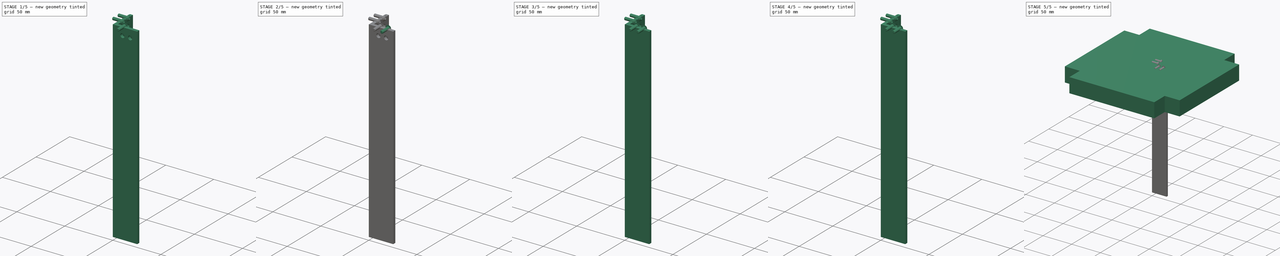
[diagram: build sequence overview — one tinted view per stage of 5, left to right]
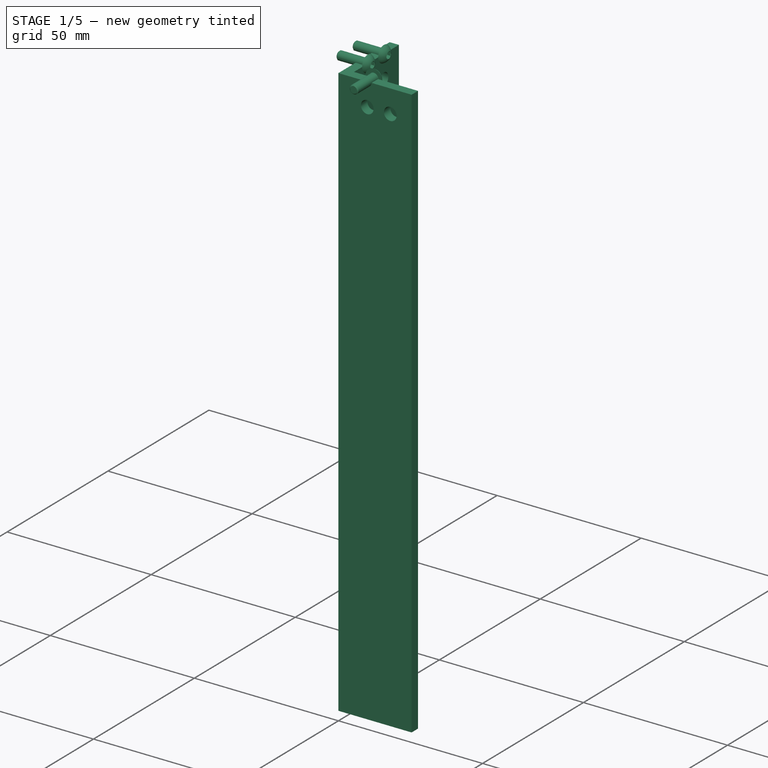
[diagram: stage 1 of 5 — iso view after this stage's code; geometry added in this stage tinted green]
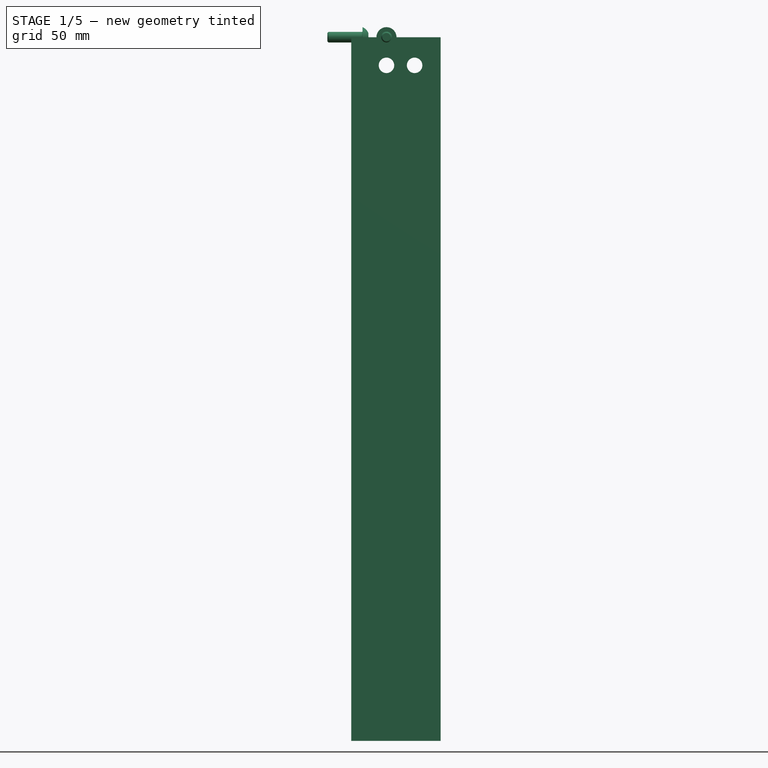
[diagram: stage 1 of 5 — front view after this stage's code; geometry added in this stage tinted green]
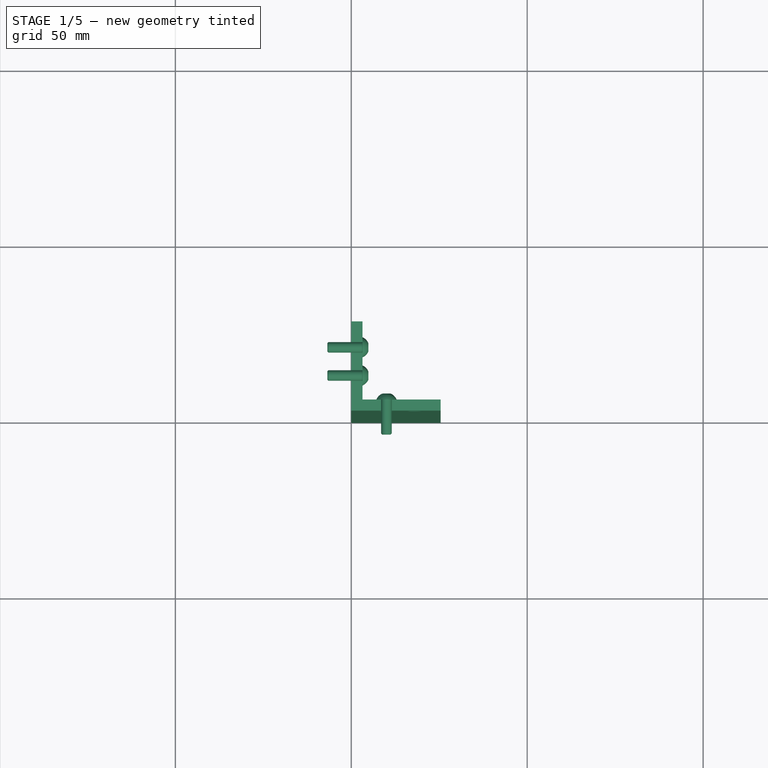
[diagram: stage 1 of 5 — top view after this stage's code; geometry added in this stage tinted green]
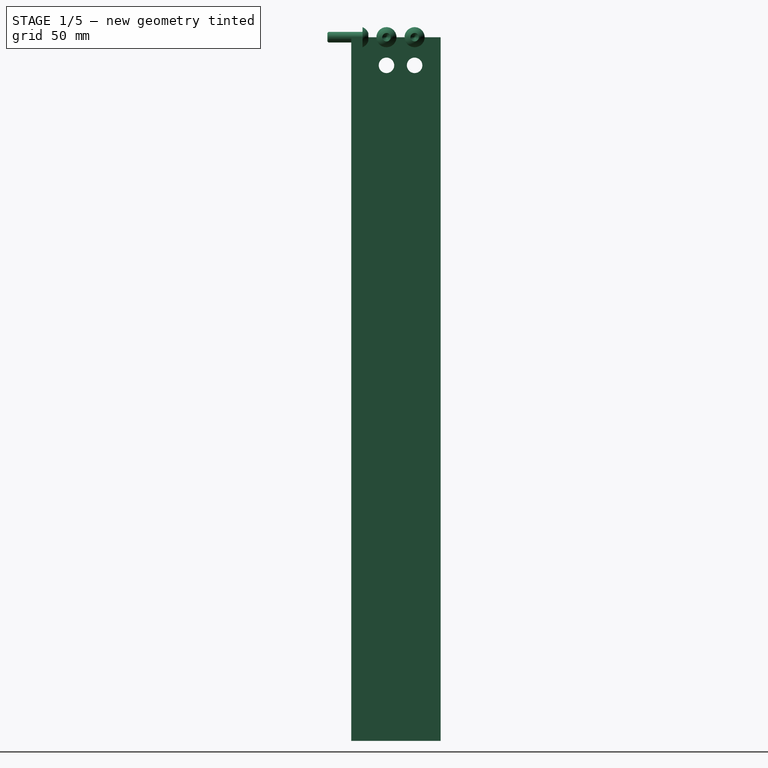
[diagram: stage 1 of 5 — right view after this stage's code; geometry added in this stage tinted green]
FCSTD DOCUMENT  (FreeCAD 0.18R4 (GitTag))
Label: WoodArt Ejercicio 002
Comment: https://designlibre.org/license-en/\nStarting from the topic that matters most in these times COVID-19 I have read a note from a protector for doctors called AerosolBox with a CC design for reproducti... (+266 chars)
License: All rights reserved
LicenseURL: https://designlibre.org/license-en/
objects: Part::FeaturePython×16, Sketcher::SketchObject×13, App::Part×9, PartDesign::Pocket×8, PartDesign::Pad×5, PartDesign::Body×5
note: 60 computed .brp shape members not serialized (recipe doc carries the construction recipe); baked Part::Feature solids carry a one-line shape summary decoded from their .brp

FEATURE [Part::FeaturePython] Screw013  label="M3x10-Screw013"  # Fasteners workbench fastener (typed FeaturePython)
  Placement = pos=(10,3.2,0) rot=(-1,0,0;1.5708rad)
  diameter = 1
  invert = false
  length = 2
  matchOuter = false
  offset = 0
  thread = false
  type = 20
FEATURE [Part::FeaturePython] Screw014  label="M3x10-Screw014"  # Fasteners workbench fastener (typed FeaturePython)
  Placement = pos=(3.2,18,0) rot=(0,1,0;1.5708rad)
  diameter = 1
  invert = false
  length = 2
  matchOuter = false
  offset = 0
  thread = false
  type = 20
FEATURE [Part::FeaturePython] Screw015  label="M3x10-Screw015"  # Fasteners workbench fastener (typed FeaturePython)
  Placement = pos=(3.2,10,0) rot=(0,1,0;1.5708rad)
  diameter = 1
  invert = false
  length = 2
  matchOuter = false
  offset = 0
  thread = false
  type = 20
FEATURE [App::Part] Part007
  Group = -> [Screw015,Screw014,Screw013,Screw012]
  Origin = -> Origin012
  Placement = pos=(0,0,-8) rot=(0,0,1;0rad)
FEATURE [PartDesign::Pad] Pad004
  Length = 200
  Length2 = 100
  Profile = -> Sketch011
  Refine = true
  Reversed = true
  Type = 0
FEATURE [Sketcher::SketchObject] Sketch010
  MapMode = 5
  Placement = pos=(3.175,0,0) rot=(0.57735,0.57735,0.57735;2.0944rad)
  Support = -> [Pad004]
  sketch-geometry (2):
    g0: Circle CenterX=10 CenterY=-8 CenterZ=0 NormalX=0 NormalY=0 NormalZ=1 AngleXU=0 Radius=2.2
    g1: Circle CenterX=18 CenterY=-8 CenterZ=0 NormalX=0 NormalY=0 NormalZ=1 AngleXU=0 Radius=2.2
  constraints (6):
    c: Equal(g1,g0)
    c: Radius(g1) = 2.2
    c: DistanceX(g0,g1) = 8
    c: DistanceX(g-1,g0) = 10
    c: DistanceY(g1,g-1) = 8
    c: Horizontal(g1,g0)
FEATURE [PartDesign::Pocket] Pocket007
  BaseFeature = -> Pad004
  Length = 5
  Length2 = 100
  Profile = -> Sketch010
  Refine = true
  Type = 1
FEATURE [Sketcher::SketchObject] Sketch012
  MapMode = 5
  Placement = pos=(0,3.175,0) rot=(0,0.707107,0.707107;3.14159rad)
  Support = -> [Pocket007]
  sketch-geometry (2):
    g0: Circle CenterX=-18 CenterY=-8 CenterZ=0 NormalX=0 NormalY=0 NormalZ=1 AngleXU=0 Radius=2.2
    g1: Circle CenterX=-10 CenterY=-8 CenterZ=0 NormalX=0 NormalY=0 NormalZ=1 AngleXU=0 Radius=2.2
  constraints (6):
    c: Equal(g0,g1)
    c: Horizontal(g1,g0)
    c: DistanceX(g0,g1) = 8
    c: DistanceX(g1,g-1) = 10
    c: DistanceY(g1,g-1) = 8
    c: Radius(g0) = 2.2
FEATURE [PartDesign::Pocket] Pocket006
  BaseFeature = -> Pocket007
  Length = 5
  Length2 = 100
  Profile = -> Sketch012
  Refine = true
  Type = 1
FEATURE [PartDesign::Body] Body004
  Group = -> [Sketch011,Pad004,Sketch010,Pocket007,Sketch012,Pocket006]
  Origin = -> Origin013
  Tip = -> Pocket006
FEATURE [App::Part] Part008
  Group = -> [Body004,Part007]
  Origin = -> Origin011
  Placement = pos=(-74,-74,0) rot=(0,0,1;3.14159rad)
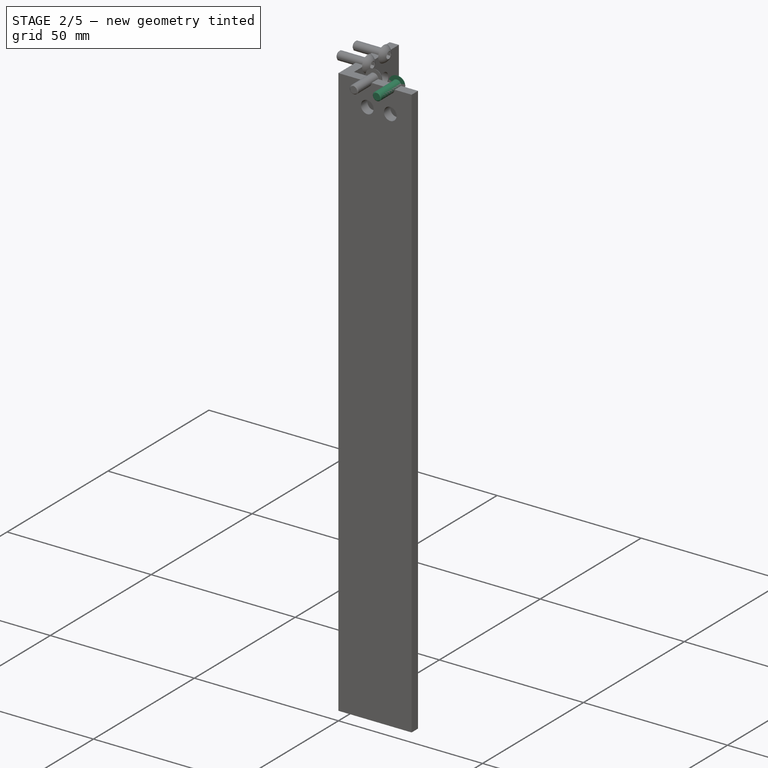
[diagram: stage 2 of 5 — iso view after this stage's code; geometry added in this stage tinted green]
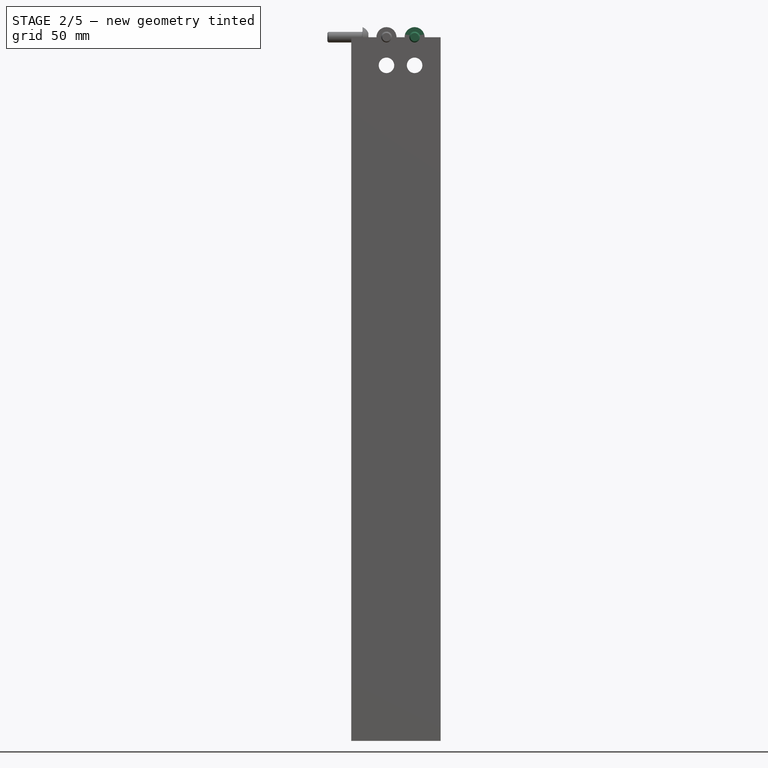
[diagram: stage 2 of 5 — front view after this stage's code; geometry added in this stage tinted green]
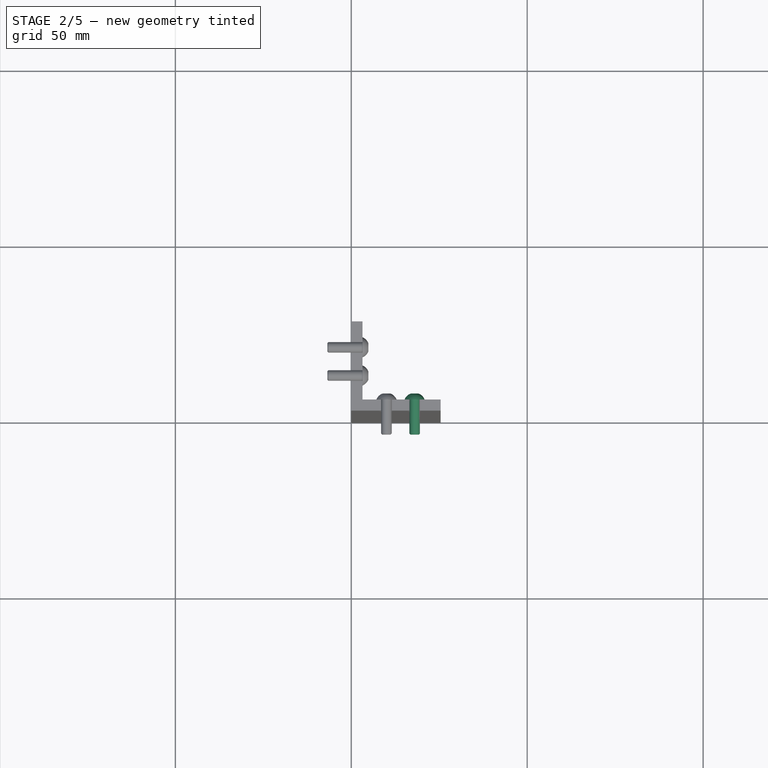
[diagram: stage 2 of 5 — top view after this stage's code; geometry added in this stage tinted green]
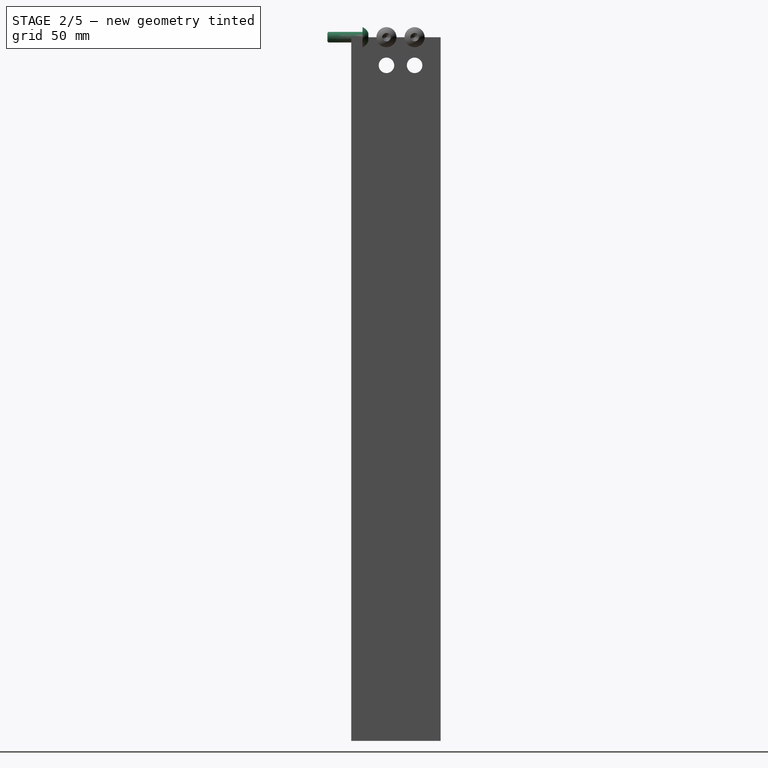
[diagram: stage 2 of 5 — right view after this stage's code; geometry added in this stage tinted green]
FEATURE [Part::FeaturePython] Screw010  label="M3x10-Screw010"  # Fasteners workbench fastener (typed FeaturePython)
  Placement = pos=(3.2,18,0) rot=(0,1,0;1.5708rad)
  diameter = 1
  invert = false
  length = 2
  matchOuter = false
  offset = 0
  thread = false
  type = 20
FEATURE [Part::FeaturePython] Screw011  label="M3x10-Screw011"  # Fasteners workbench fastener (typed FeaturePython)
  Placement = pos=(3.2,10,0) rot=(0,1,0;1.5708rad)
  diameter = 1
  invert = false
  length = 2
  matchOuter = false
  offset = 0
  thread = false
  type = 20
FEATURE [App::Part] Part005
  Group = -> [Screw011,Screw010,Screw009,Screw008]
  Origin = -> Origin009
  Placement = pos=(0,0,-8) rot=(0,0,1;0rad)
FEATURE [PartDesign::Pad] Pad003
  Length = 200
  Length2 = 100
  Profile = -> Sketch008
  Refine = true
  Reversed = true
  Type = 0
FEATURE [Sketcher::SketchObject] Sketch007
  MapMode = 5
  Placement = pos=(3.175,0,0) rot=(0.57735,0.57735,0.57735;2.0944rad)
  Support = -> [Pad003]
  sketch-geometry (2):
    g0: Circle CenterX=10 CenterY=-8 CenterZ=0 NormalX=0 NormalY=0 NormalZ=1 AngleXU=0 Radius=2.2
    g1: Circle CenterX=18 CenterY=-8 CenterZ=0 NormalX=0 NormalY=0 NormalZ=1 AngleXU=0 Radius=2.2
  constraints (6):
    c: Equal(g1,g0)
    c: Radius(g1) = 2.2
    c: DistanceX(g0,g1) = 8
    c: DistanceX(g-1,g0) = 10
    c: DistanceY(g1,g-1) = 8
    c: Horizontal(g1,g0)
FEATURE [PartDesign::Pocket] Pocket005
  BaseFeature = -> Pad003
  Length = 5
  Length2 = 100
  Profile = -> Sketch007
  Refine = true
  Type = 1
FEATURE [Sketcher::SketchObject] Sketch009
  MapMode = 5
  Placement = pos=(0,3.175,0) rot=(0,0.707107,0.707107;3.14159rad)
  Support = -> [Pocket005]
  sketch-geometry (2):
    g0: Circle CenterX=-18 CenterY=-8 CenterZ=0 NormalX=0 NormalY=0 NormalZ=1 AngleXU=0 Radius=2.2
    g1: Circle CenterX=-10 CenterY=-8 CenterZ=0 NormalX=0 NormalY=0 NormalZ=1 AngleXU=0 Radius=2.2
  constraints (6):
    c: Equal(g0,g1)
    c: Horizontal(g1,g0)
    c: DistanceX(g0,g1) = 8
    c: DistanceX(g1,g-1) = 10
    c: DistanceY(g1,g-1) = 8
    c: Radius(g0) = 2.2
FEATURE [PartDesign::Pocket] Pocket004
  BaseFeature = -> Pocket005
  Length = 5
  Length2 = 100
  Profile = -> Sketch009
  Refine = true
  Type = 1
FEATURE [PartDesign::Body] Body003
  Group = -> [Sketch008,Pad003,Sketch007,Pocket005,Sketch009,Pocket004]
  Origin = -> Origin010
  Tip = -> Pocket004
FEATURE [App::Part] Part006
  Group = -> [Body003,Part005]
  Origin = -> Origin008
  Placement = pos=(74,-74,0) rot=(0,0,1;4.71239rad)
FEATURE [Sketcher::SketchObject] Sketch011
  MapMode = 5
  Support = -> [XY_Plane011]
  sketch-geometry (6):
    g0: LineSegment StartX=3.175 StartY=3.175 StartZ=0 EndX=3.175 EndY=25.4 EndZ=0
    g1: LineSegment StartX=3.175 StartY=25.4 StartZ=0 EndX=0 EndY=25.4 EndZ=0
    g2: LineSegment StartX=0 StartY=0 StartZ=0 EndX=25.4 EndY=0 EndZ=0
    g3: LineSegment StartX=25.4 StartY=0 StartZ=0 EndX=25.4 EndY=3.175 EndZ=0
    g4: LineSegment StartX=25.4 StartY=3.175 StartZ=0 EndX=3.175 EndY=3.175 EndZ=0
    g5: LineSegment StartX=0 StartY=25.4 StartZ=0 EndX=0 EndY=0 EndZ=0
  constraints (17):
    c: Coincident(g0,g1)
    c: Horizontal(g1)
    c: Vertical(g0)
    c: Coincident(g2,g3)
    c: Coincident(g3,g4)
    c: Coincident(g5,g2)
    c: Horizontal(g2)
    c: Horizontal(g4)
    c: Vertical(g3)
    c: Vertical(g5)
    c: Equal(g3,g1)
    c: Coincident(g4,g0)
    c: Coincident(g5,g1)
    c: Coincident(g2,g-1)
    c: Equal(g2,g5)
    c: DistanceX(g2,g2) = 25.4
    c: DistanceY(g3,g3) = 3.175
FEATURE [Part::FeaturePython] Screw012  label="M3x10-Screw012"  # Fasteners workbench fastener (typed FeaturePython)
  Placement = pos=(18,3.2,0) rot=(-1,0,0;1.5708rad)
  diameter = 1
  invert = false
  length = 2
  matchOuter = false
  offset = 0
  thread = false
  type = 20
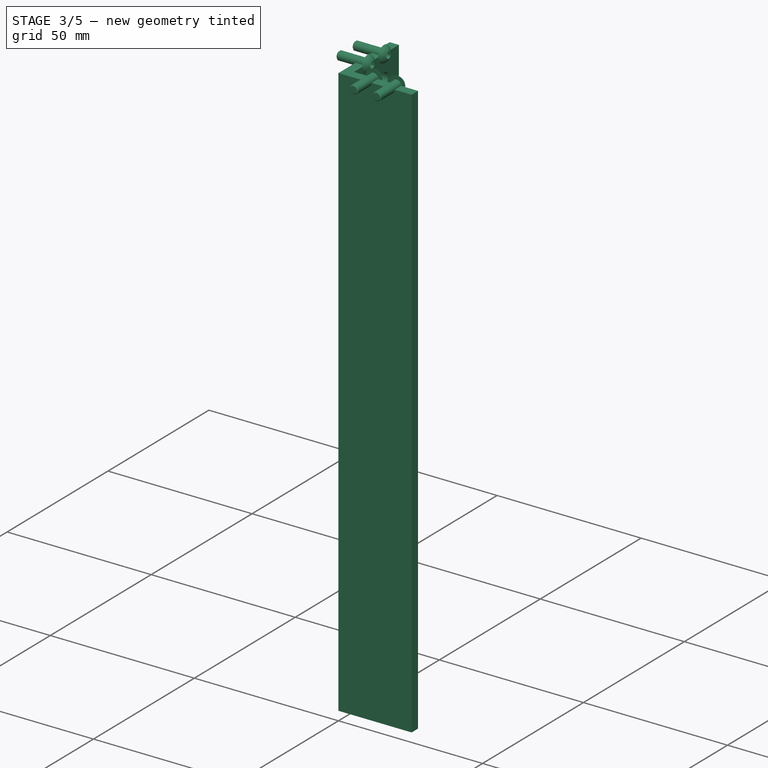
[diagram: stage 3 of 5 — iso view after this stage's code; geometry added in this stage tinted green]
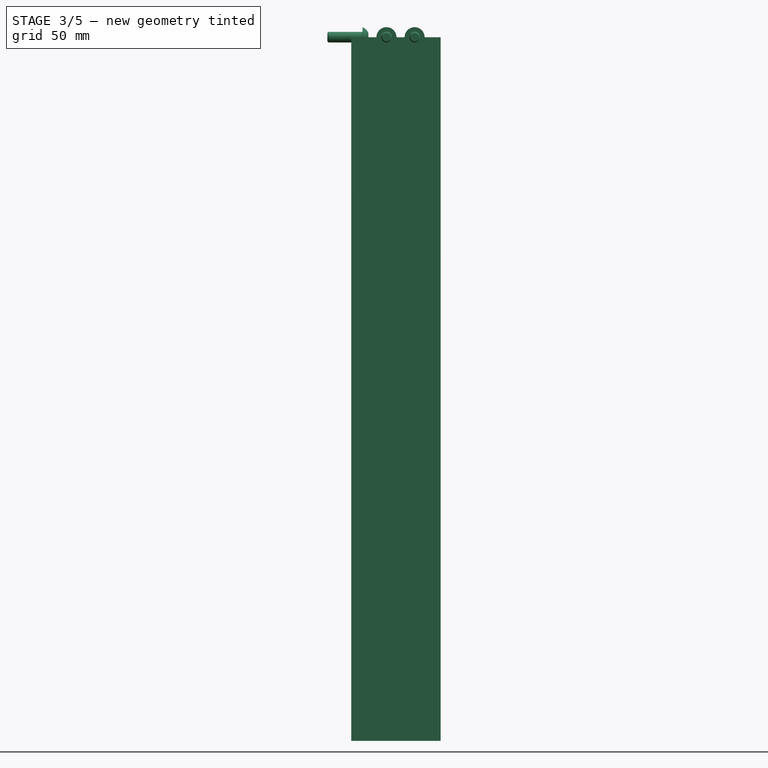
[diagram: stage 3 of 5 — front view after this stage's code; geometry added in this stage tinted green]
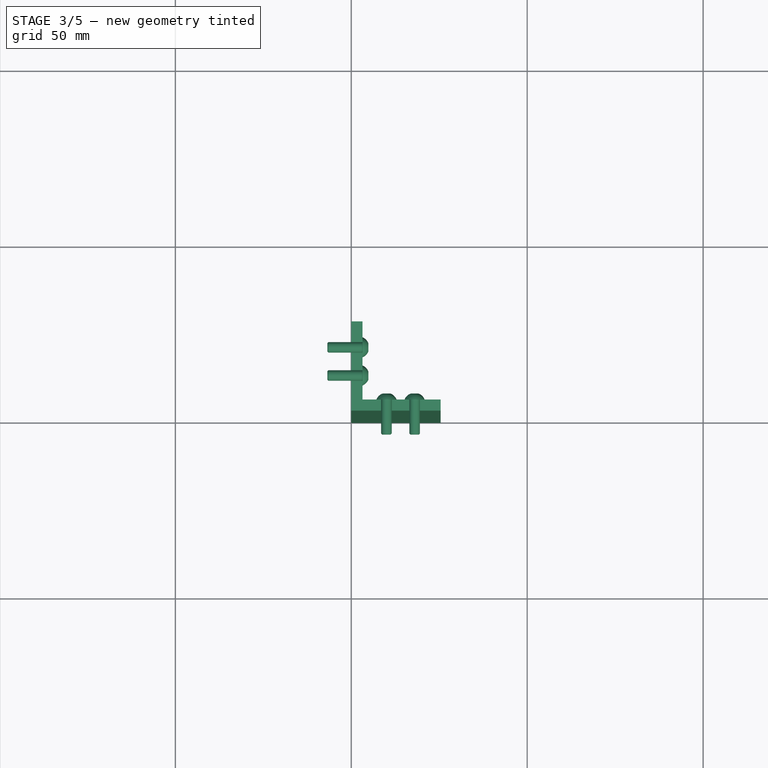
[diagram: stage 3 of 5 — top view after this stage's code; geometry added in this stage tinted green]
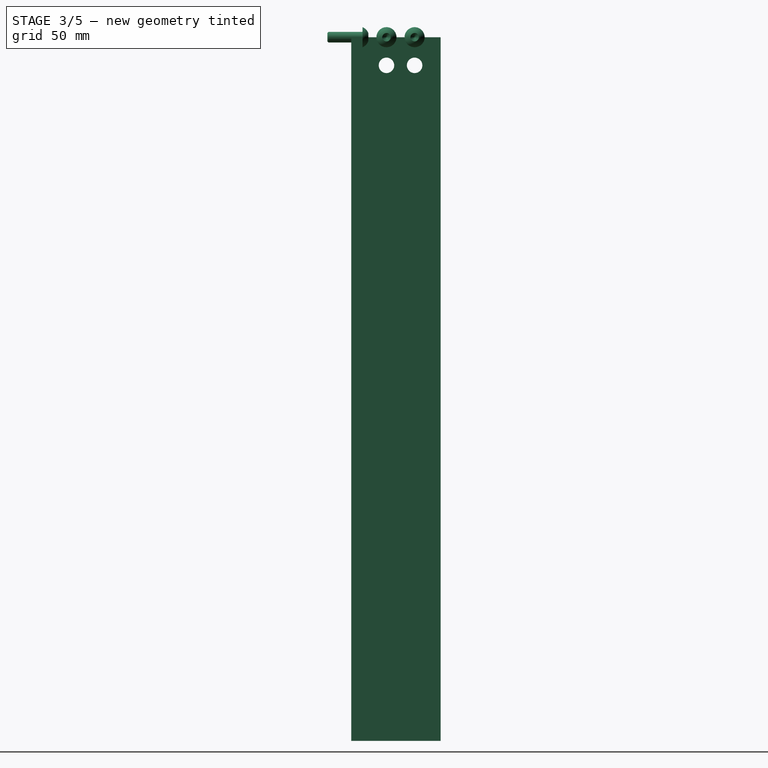
[diagram: stage 3 of 5 — right view after this stage's code; geometry added in this stage tinted green]
FEATURE [Part::FeaturePython] Screw007  label="M3x10-Screw007"  # Fasteners workbench fastener (typed FeaturePython)
  Placement = pos=(3.2,10,0) rot=(0,1,0;1.5708rad)
  diameter = 1
  invert = false
  length = 2
  matchOuter = false
  offset = 0
  thread = false
  type = 20
FEATURE [App::Part] Part003
  Group = -> [Screw007,Screw006,Screw005,Screw004]
  Origin = -> Origin006
  Placement = pos=(0,0,-8) rot=(0,0,1;0rad)
FEATURE [PartDesign::Pad] Pad002
  Length = 200
  Length2 = 100
  Profile = -> Sketch005
  Refine = true
  Reversed = true
  Type = 0
FEATURE [Sketcher::SketchObject] Sketch004
  MapMode = 5
  Placement = pos=(3.175,0,0) rot=(0.57735,0.57735,0.57735;2.0944rad)
  Support = -> [Pad002]
  sketch-geometry (2):
    g0: Circle CenterX=10 CenterY=-8 CenterZ=0 NormalX=0 NormalY=0 NormalZ=1 AngleXU=0 Radius=2.2
    g1: Circle CenterX=18 CenterY=-8 CenterZ=0 NormalX=0 NormalY=0 NormalZ=1 AngleXU=0 Radius=2.2
  constraints (6):
    c: Equal(g1,g0)
    c: Radius(g1) = 2.2
    c: DistanceX(g0,g1) = 8
    c: DistanceX(g-1,g0) = 10
    c: DistanceY(g1,g-1) = 8
    c: Horizontal(g1,g0)
FEATURE [PartDesign::Pocket] Pocket003
  BaseFeature = -> Pad002
  Length = 5
  Length2 = 100
  Profile = -> Sketch004
  Refine = true
  Type = 1
FEATURE [PartDesign::Body] Body002
  Group = -> [Sketch005,Pad002,Sketch004,Pocket003,Sketch006,Pocket002]
  Origin = -> Origin007
  Tip = -> Pocket002
FEATURE [App::Part] Part004
  Group = -> [Body002,Part003]
  Origin = -> Origin005
  Placement = pos=(-74,74,0) rot=(0,0,1;1.5708rad)
FEATURE [Sketcher::SketchObject] Sketch008
  MapMode = 5
  Support = -> [XY_Plane008]
  sketch-geometry (6):
    g0: LineSegment StartX=3.175 StartY=3.175 StartZ=0 EndX=3.175 EndY=25.4 EndZ=0
    g1: LineSegment StartX=3.175 StartY=25.4 StartZ=0 EndX=0 EndY=25.4 EndZ=0
    g2: LineSegment StartX=0 StartY=0 StartZ=0 EndX=25.4 EndY=0 EndZ=0
    g3: LineSegment StartX=25.4 StartY=0 StartZ=0 EndX=25.4 EndY=3.175 EndZ=0
    g4: LineSegment StartX=25.4 StartY=3.175 StartZ=0 EndX=3.175 EndY=3.175 EndZ=0
    g5: LineSegment StartX=0 StartY=25.4 StartZ=0 EndX=0 EndY=0 EndZ=0
  constraints (17):
    c: Coincident(g0,g1)
    c: Horizontal(g1)
    c: Vertical(g0)
    c: Coincident(g2,g3)
    c: Coincident(g3,g4)
    c: Coincident(g5,g2)
    c: Horizontal(g2)
    c: Horizontal(g4)
    c: Vertical(g3)
    c: Vertical(g5)
    c: Equal(g3,g1)
    c: Coincident(g4,g0)
    c: Coincident(g5,g1)
    c: Coincident(g2,g-1)
    c: Equal(g2,g5)
    c: DistanceX(g2,g2) = 25.4
    c: DistanceY(g3,g3) = 3.175
FEATURE [Part::FeaturePython] Screw008  label="M3x10-Screw008"  # Fasteners workbench fastener (typed FeaturePython)
  Placement = pos=(18,3.2,0) rot=(-1,0,0;1.5708rad)
  diameter = 1
  invert = false
  length = 2
  matchOuter = false
  offset = 0
  thread = false
  type = 20
FEATURE [Part::FeaturePython] Screw009  label="M3x10-Screw009"  # Fasteners workbench fastener (typed FeaturePython)
  Placement = pos=(10,3.2,0) rot=(-1,0,0;1.5708rad)
  diameter = 1
  invert = false
  length = 2
  matchOuter = false
  offset = 0
  thread = false
  type = 20
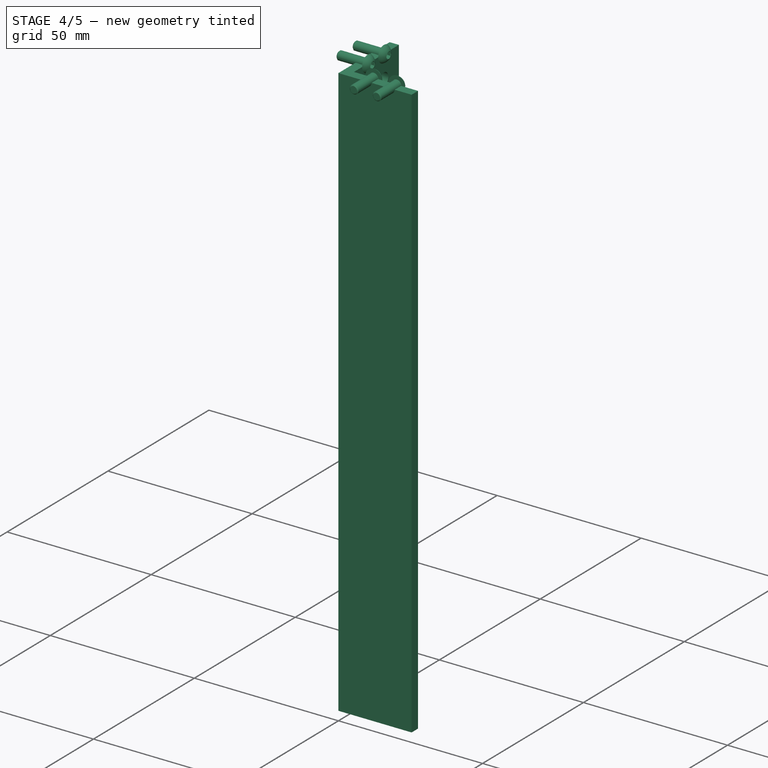
[diagram: stage 4 of 5 — iso view after this stage's code; geometry added in this stage tinted green]
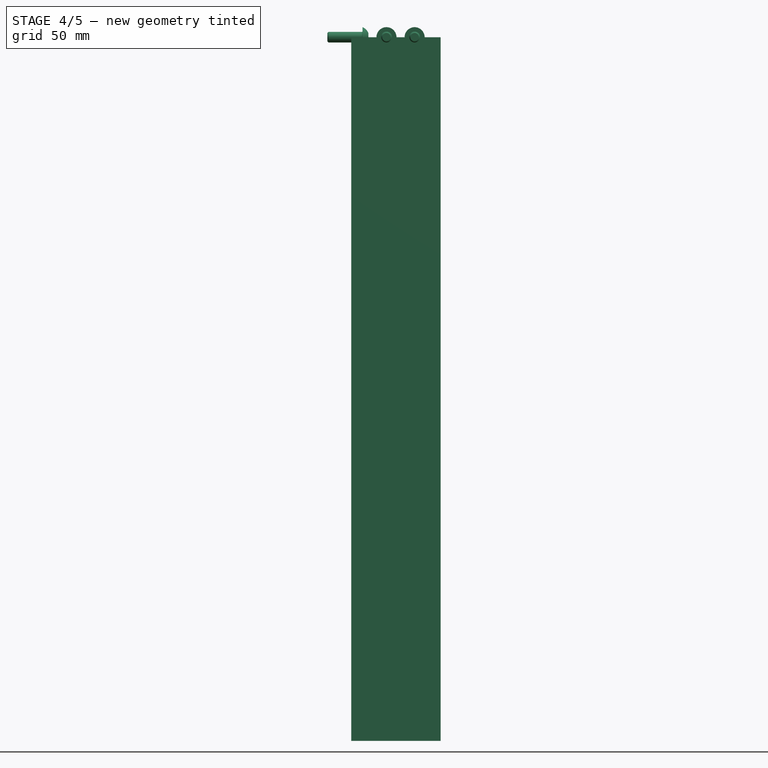
[diagram: stage 4 of 5 — front view after this stage's code; geometry added in this stage tinted green]
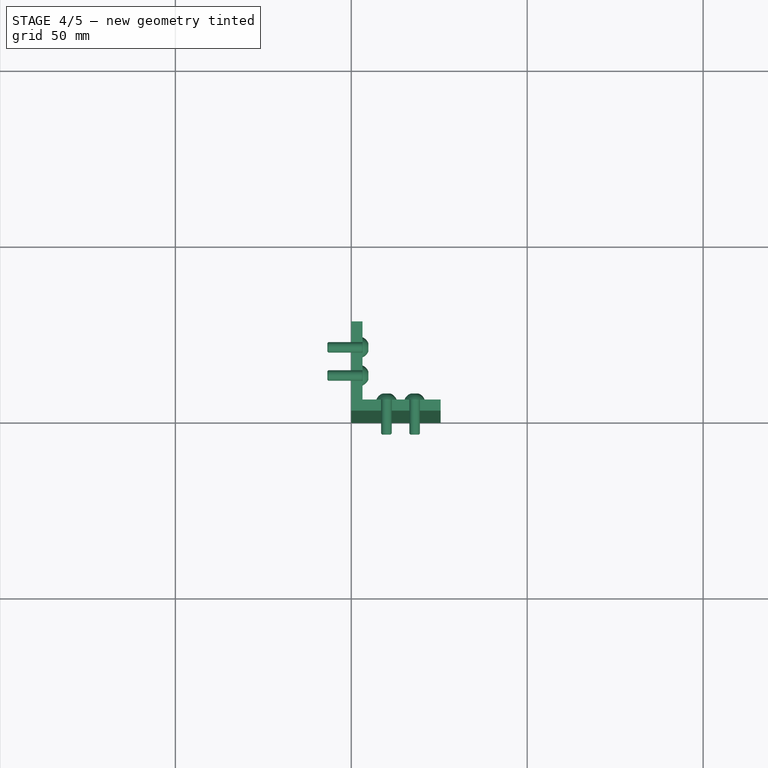
[diagram: stage 4 of 5 — top view after this stage's code; geometry added in this stage tinted green]
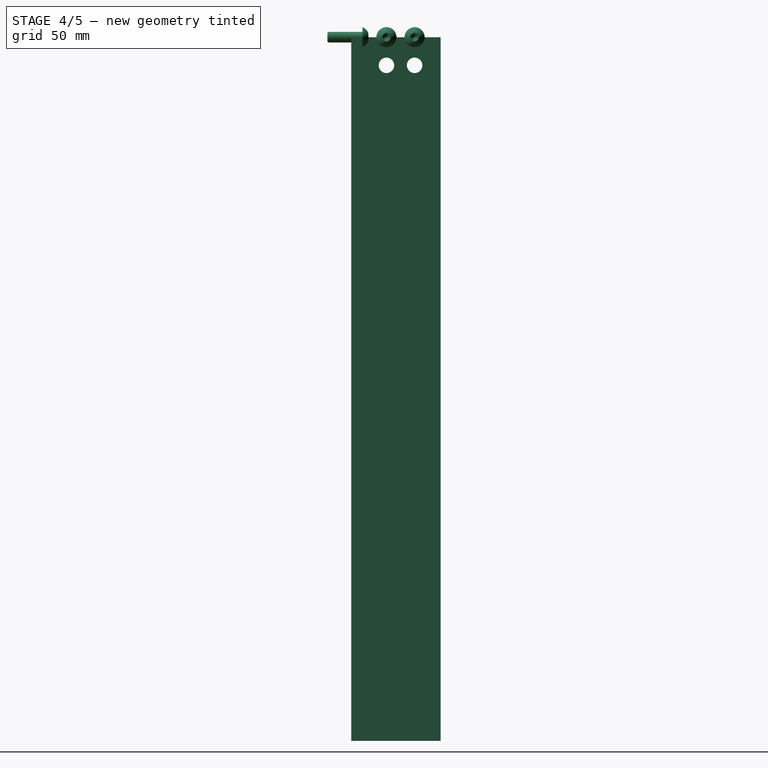
[diagram: stage 4 of 5 — right view after this stage's code; geometry added in this stage tinted green]
FEATURE [PartDesign::Body] Body
  Group = -> [Sketch,Pad]
  Origin = -> Origin002
  Tip = -> Pad
FEATURE [App::Part] Part
  Group = -> [Body]
  Origin = -> Origin
FEATURE [Sketcher::SketchObject] Sketch001
  MapMode = 5
  Support = -> [XY_Plane003]
  sketch-geometry (6):
    g0: LineSegment StartX=3.175 StartY=3.175 StartZ=0 EndX=3.175 EndY=25.4 EndZ=0
    g1: LineSegment StartX=3.175 StartY=25.4 StartZ=0 EndX=0 EndY=25.4 EndZ=0
    g2: LineSegment StartX=0 StartY=0 StartZ=0 EndX=25.4 EndY=0 EndZ=0
    g3: LineSegment StartX=25.4 StartY=0 StartZ=0 EndX=25.4 EndY=3.175 EndZ=0
    g4: LineSegment StartX=25.4 StartY=3.175 StartZ=0 EndX=3.175 EndY=3.175 EndZ=0
    g5: LineSegment StartX=0 StartY=25.4 StartZ=0 EndX=0 EndY=0 EndZ=0
  constraints (17):
    c: Coincident(g0,g1)
    c: Horizontal(g1)
    c: Vertical(g0)
    c: Coincident(g2,g3)
    c: Coincident(g3,g4)
    c: Coincident(g5,g2)
    c: Horizontal(g2)
    c: Horizontal(g4)
    c: Vertical(g3)
    c: Vertical(g5)
    c: Equal(g3,g1)
    c: Coincident(g4,g0)
    c: Coincident(g5,g1)
    c: Coincident(g2,g-1)
    c: Equal(g2,g5)
    c: DistanceX(g2,g2) = 25.4
    c: DistanceY(g3,g3) = 3.175
FEATURE [PartDesign::Pad] Pad001
  Length = 200
  Length2 = 100
  Profile = -> Sketch001
  Refine = true
  Reversed = true
  Type = 0
FEATURE [App::Part] Part002
  Group = -> [Screw,Screw001,Screw002,Screw003]
  Origin = -> Origin004
  Placement = pos=(0,0,-8) rot=(0,0,1;0rad)
FEATURE [Sketcher::SketchObject] Sketch002
  MapMode = 5
  Placement = pos=(3.175,0,0) rot=(0.57735,0.57735,0.57735;2.0944rad)
  Support = -> [Pad001]
  sketch-geometry (2):
    g0: Circle CenterX=10 CenterY=-8 CenterZ=0 NormalX=0 NormalY=0 NormalZ=1 AngleXU=0 Radius=2.2
    g1: Circle CenterX=18 CenterY=-8 CenterZ=0 NormalX=0 NormalY=0 NormalZ=1 AngleXU=0 Radius=2.2
  constraints (6):
    c: Equal(g1,g0)
    c: Radius(g1) = 2.2
    c: DistanceX(g0,g1) = 8
    c: DistanceX(g-1,g0) = 10
    c: DistanceY(g1,g-1) = 8
    c: Horizontal(g1,g0)
FEATURE [PartDesign::Pocket] Pocket
  BaseFeature = -> Pad001
  Length = 5
  Length2 = 100
  Profile = -> Sketch002
  Refine = true
  Type = 1
FEATURE [PartDesign::Body] Body001
  Group = -> [Sketch001,Pad001,Sketch002,Pocket,Sketch003,Pocket001]
  Origin = -> Origin003
  Tip = -> Pocket001
FEATURE [App::Part] Part001
  Group = -> [Body001,Part002]
  Origin = -> Origin001
  Placement = pos=(74,74,0) rot=(0,0,1;0rad)
FEATURE [Sketcher::SketchObject] Sketch005
  MapMode = 5
  Support = -> [XY_Plane005]
  sketch-geometry (6):
    g0: LineSegment StartX=3.175 StartY=3.175 StartZ=0 EndX=3.175 EndY=25.4 EndZ=0
    g1: LineSegment StartX=3.175 StartY=25.4 StartZ=0 EndX=0 EndY=25.4 EndZ=0
    g2: LineSegment StartX=0 StartY=0 StartZ=0 EndX=25.4 EndY=0 EndZ=0
    g3: LineSegment StartX=25.4 StartY=0 StartZ=0 EndX=25.4 EndY=3.175 EndZ=0
    g4: LineSegment StartX=25.4 StartY=3.175 StartZ=0 EndX=3.175 EndY=3.175 EndZ=0
    g5: LineSegment StartX=0 StartY=25.4 StartZ=0 EndX=0 EndY=0 EndZ=0
  constraints (17):
    c: Coincident(g0,g1)
    c: Horizontal(g1)
    c: Vertical(g0)
    c: Coincident(g2,g3)
    c: Coincident(g3,g4)
    c: Coincident(g5,g2)
    c: Horizontal(g2)
    c: Horizontal(g4)
    c: Vertical(g3)
    c: Vertical(g5)
    c: Equal(g3,g1)
    c: Coincident(g4,g0)
    c: Coincident(g5,g1)
    c: Coincident(g2,g-1)
    c: Equal(g2,g5)
    c: DistanceX(g2,g2) = 25.4
    c: DistanceY(g3,g3) = 3.175
FEATURE [Part::FeaturePython] Screw004  label="M3x10-Screw004"  # Fasteners workbench fastener (typed FeaturePython)
  Placement = pos=(18,3.2,0) rot=(-1,0,0;1.5708rad)
  diameter = 1
  invert = false
  length = 2
  matchOuter = false
  offset = 0
  thread = false
  type = 20
FEATURE [Part::FeaturePython] Screw005  label="M3x10-Screw005"  # Fasteners workbench fastener (typed FeaturePython)
  Placement = pos=(10,3.2,0) rot=(-1,0,0;1.5708rad)
  diameter = 1
  invert = false
  length = 2
  matchOuter = false
  offset = 0
  thread = false
  type = 20
FEATURE [Part::FeaturePython] Screw006  label="M3x10-Screw006"  # Fasteners workbench fastener (typed FeaturePython)
  Placement = pos=(3.2,18,0) rot=(0,1,0;1.5708rad)
  diameter = 1
  invert = false
  length = 2
  matchOuter = false
  offset = 0
  thread = false
  type = 20
FEATURE [Sketcher::SketchObject] Sketch006
  MapMode = 5
  Placement = pos=(0,3.175,0) rot=(0,0.707107,0.707107;3.14159rad)
  Support = -> [Pocket003]
  sketch-geometry (2):
    g0: Circle CenterX=-18 CenterY=-8 CenterZ=0 NormalX=0 NormalY=0 NormalZ=1 AngleXU=0 Radius=2.2
    g1: Circle CenterX=-10 CenterY=-8 CenterZ=0 NormalX=0 NormalY=0 NormalZ=1 AngleXU=0 Radius=2.2
  constraints (6):
    c: Equal(g0,g1)
    c: Horizontal(g1,g0)
    c: DistanceX(g0,g1) = 8
    c: DistanceX(g1,g-1) = 10
    c: DistanceY(g1,g-1) = 8
    c: Radius(g0) = 2.2
FEATURE [PartDesign::Pocket] Pocket002
  BaseFeature = -> Pocket003
  Length = 5
  Length2 = 100
  Profile = -> Sketch006
  Refine = true
  Type = 1
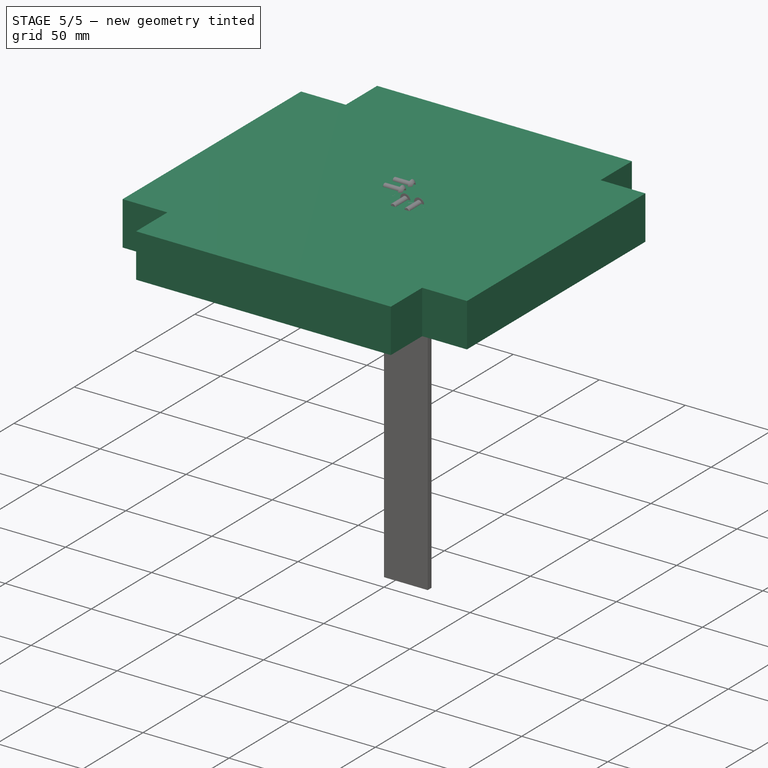
[diagram: stage 5 of 5 — iso view after this stage's code; geometry added in this stage tinted green]
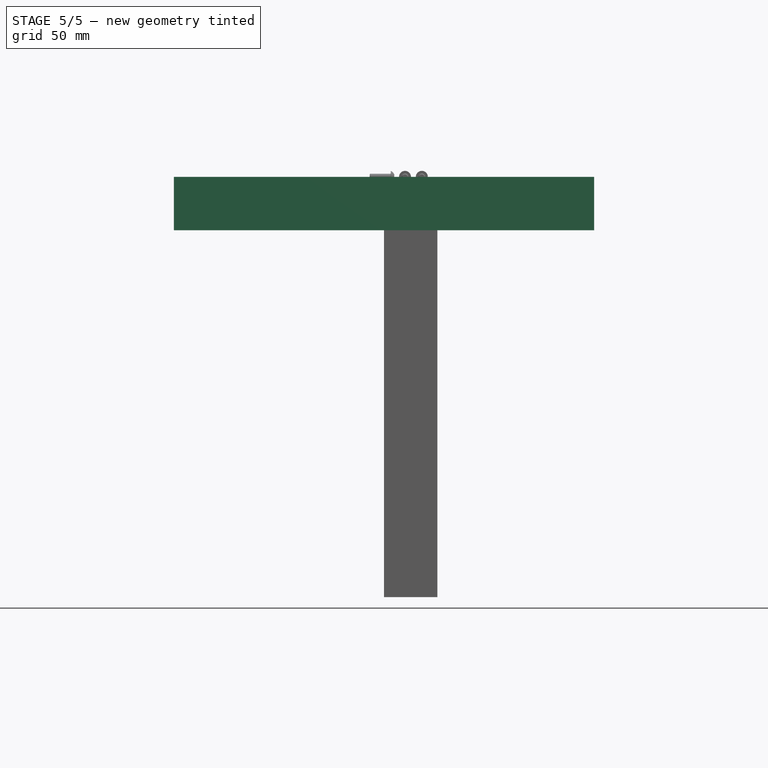
[diagram: stage 5 of 5 — front view after this stage's code; geometry added in this stage tinted green]
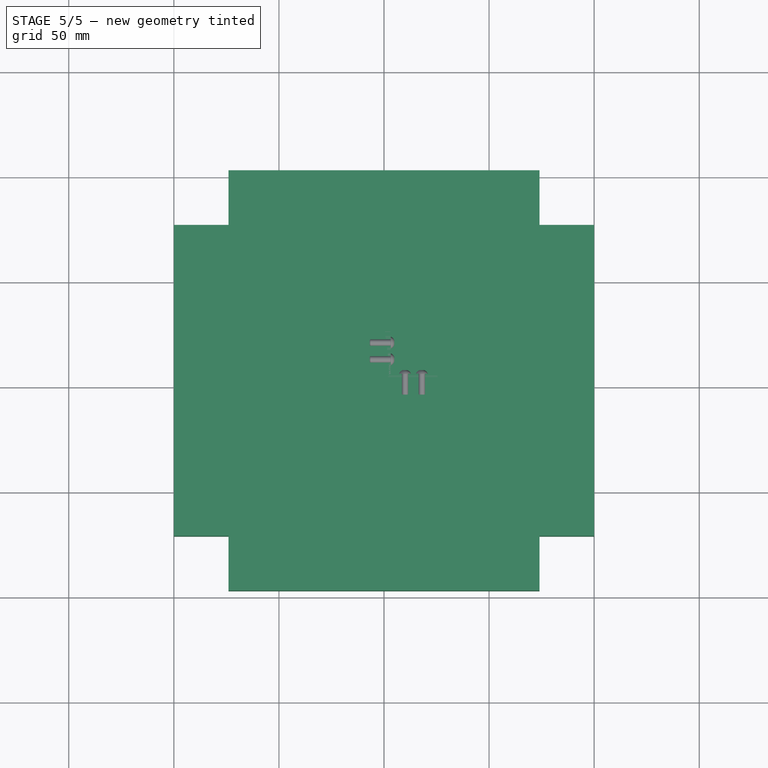
[diagram: stage 5 of 5 — top view after this stage's code; geometry added in this stage tinted green]
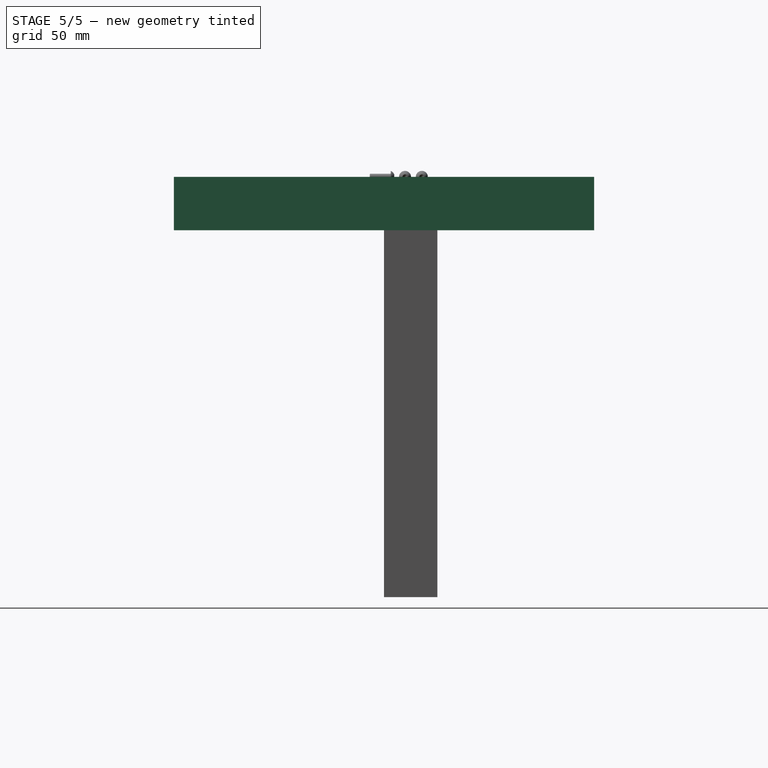
[diagram: stage 5 of 5 — right view after this stage's code; geometry added in this stage tinted green]
FEATURE [Sketcher::SketchObject] Sketch
  MapMode = 5
  Support = -> [XY_Plane002]
  sketch-geometry (12):
    g0: LineSegment StartX=-74 StartY=100 StartZ=0 EndX=74 EndY=100 EndZ=0
    g1: LineSegment StartX=100 StartY=74 StartZ=0 EndX=100 EndY=-74 EndZ=0
    g2: LineSegment StartX=74 StartY=-100 StartZ=0 EndX=-74 EndY=-100 EndZ=0
    g3: LineSegment StartX=-100 StartY=-74 StartZ=0 EndX=-100 EndY=74 EndZ=0
    g4: LineSegment StartX=74 StartY=100 StartZ=0 EndX=74 EndY=74 EndZ=0
    g5: LineSegment StartX=74 StartY=74 StartZ=0 EndX=100 EndY=74 EndZ=0
    g6: LineSegment StartX=100 StartY=-74 StartZ=0 EndX=74 EndY=-74 EndZ=0
    g7: LineSegment StartX=74 StartY=-74 StartZ=0 EndX=74 EndY=-100 EndZ=0
    g8: LineSegment StartX=-100 StartY=-74 StartZ=0 EndX=-74 EndY=-74 EndZ=0
    g9: LineSegment StartX=-74 StartY=-74 StartZ=0 EndX=-74 EndY=-100 EndZ=0
    g10: LineSegment StartX=-74 StartY=100 StartZ=0 EndX=-74 EndY=74 EndZ=0
    g11: LineSegment StartX=-74 StartY=74 StartZ=0 EndX=-100 EndY=74 EndZ=0
  constraints (35):
    c: Horizontal(g0)
    c: Horizontal(g2)
    c: Vertical(g1)
    c: Vertical(g3)
    c: Vertical(g4)
    c: Coincident(g4,g5)
    c: Horizontal(g6)
    c: Coincident(g6,g7)
    c: Vertical(g7)
    c: Coincident(g8,g9)
    c: Vertical(g9)
    c: Coincident(g10,g11)
    c: Vertical(g10)
    c: Horizontal(g8)
    c: Horizontal(g5)
    c: Horizontal(g11)
    c: Equal(g5,g4)
    c: Equal(g4,g6)
    c: Equal(g6,g7)
    c: Equal(g7,g9)
    c: Equal(g9,g8)
    c: Equal(g8,g11)
    c: Equal(g11,g10)
    c: Coincident(g1,g5)
    c: Coincident(g0,g4)
    c: Coincident(g0,g10)
    c: Coincident(g3,g11)
    c: Coincident(g3,g8)
    c: Coincident(g2,g9)
    c: Coincident(g2,g7)
    c: Coincident(g1,g6)
    c: Symmetric(g10,g6,g-1)
    c: DistanceY(g2,g0) = 200
    c: DistanceY(g9,g9) = 26
    c: Equal(g2,g1)
FEATURE [PartDesign::Pad] Pad
  Length = 25.4
  Length2 = 100
  Profile = -> Sketch
  Refine = true
  Reversed = true
  Type = 0
FEATURE [Part::FeaturePython] Screw  label="M3x10-Screw"  # Fasteners workbench fastener (typed FeaturePython)
  Placement = pos=(3.2,10,0) rot=(0,1,0;1.5708rad)
  diameter = 1
  invert = false
  length = 2
  matchOuter = false
  offset = 0
  thread = false
  type = 20
FEATURE [Part::FeaturePython] Screw001  label="M3x10-Screw001"  # Fasteners workbench fastener (typed FeaturePython)
  Placement = pos=(3.2,18,0) rot=(0,1,0;1.5708rad)
  diameter = 1
  invert = false
  length = 2
  matchOuter = false
  offset = 0
  thread = false
  type = 20
FEATURE [Part::FeaturePython] Screw002  label="M3x10-Screw002"  # Fasteners workbench fastener (typed FeaturePython)
  Placement = pos=(10,3.2,0) rot=(-1,0,0;1.5708rad)
  diameter = 1
  invert = false
  length = 2
  matchOuter = false
  offset = 0
  thread = false
  type = 20
FEATURE [Part::FeaturePython] Screw003  label="M3x10-Screw003"  # Fasteners workbench fastener (typed FeaturePython)
  Placement = pos=(18,3.2,0) rot=(-1,0,0;1.5708rad)
  diameter = 1
  invert = false
  length = 2
  matchOuter = false
  offset = 0
  thread = false
  type = 20
FEATURE [Sketcher::SketchObject] Sketch003
  MapMode = 5
  Placement = pos=(0,3.175,0) rot=(0,0.707107,0.707107;3.14159rad)
  Support = -> [Pocket]
  sketch-geometry (2):
    g0: Circle CenterX=-18 CenterY=-8 CenterZ=0 NormalX=0 NormalY=0 NormalZ=1 AngleXU=0 Radius=2.2
    g1: Circle CenterX=-10 CenterY=-8 CenterZ=0 NormalX=0 NormalY=0 NormalZ=1 AngleXU=0 Radius=2.2
  constraints (6):
    c: Equal(g0,g1)
    c: Horizontal(g1,g0)
    c: DistanceX(g0,g1) = 8
    c: DistanceX(g1,g-1) = 10
    c: DistanceY(g1,g-1) = 8
    c: Radius(g0) = 2.2
FEATURE [PartDesign::Pocket] Pocket001
  BaseFeature = -> Pocket
  Length = 5
  Length2 = 100
  Profile = -> Sketch003
  Refine = true
  Type = 1
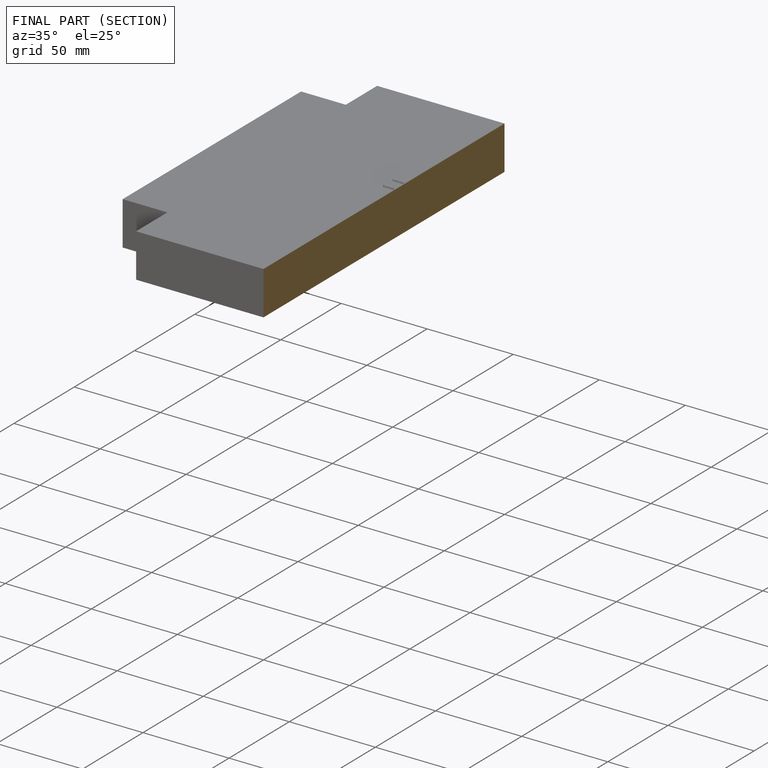
[diagram: finished part — half-section view (interior)]
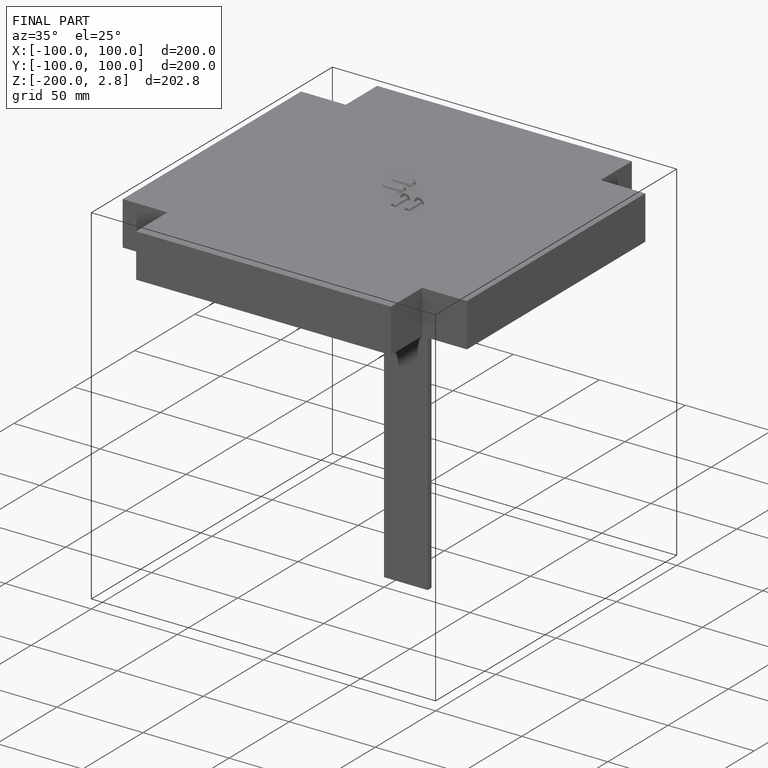
[diagram: finished part — iso view with bounding-box wireframe]
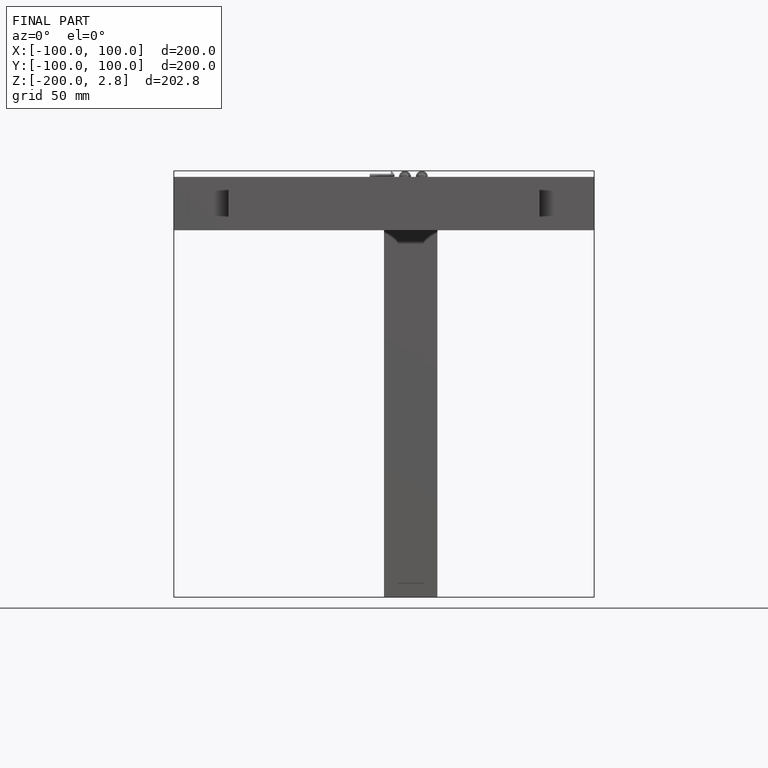
[diagram: finished part — front view with bounding-box wireframe]
